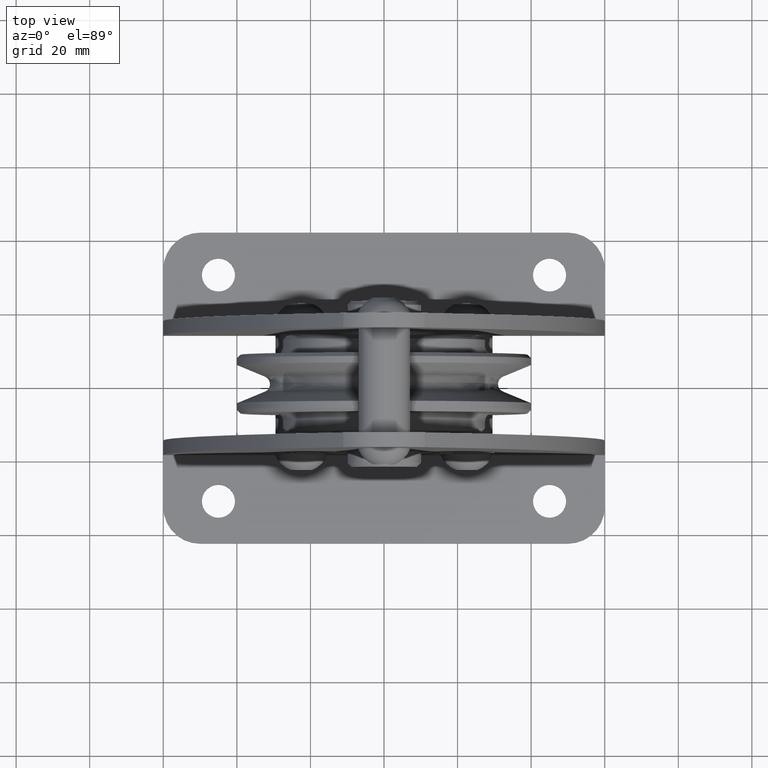
[diagram: clean part render]
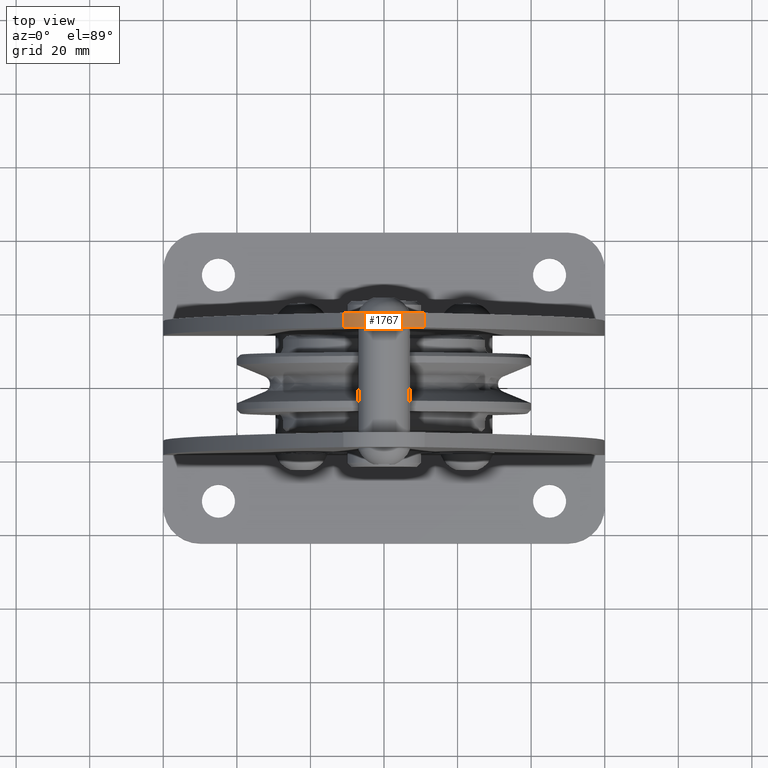
[diagram: same view with one face highlighted and labeled with its STEP entity id]
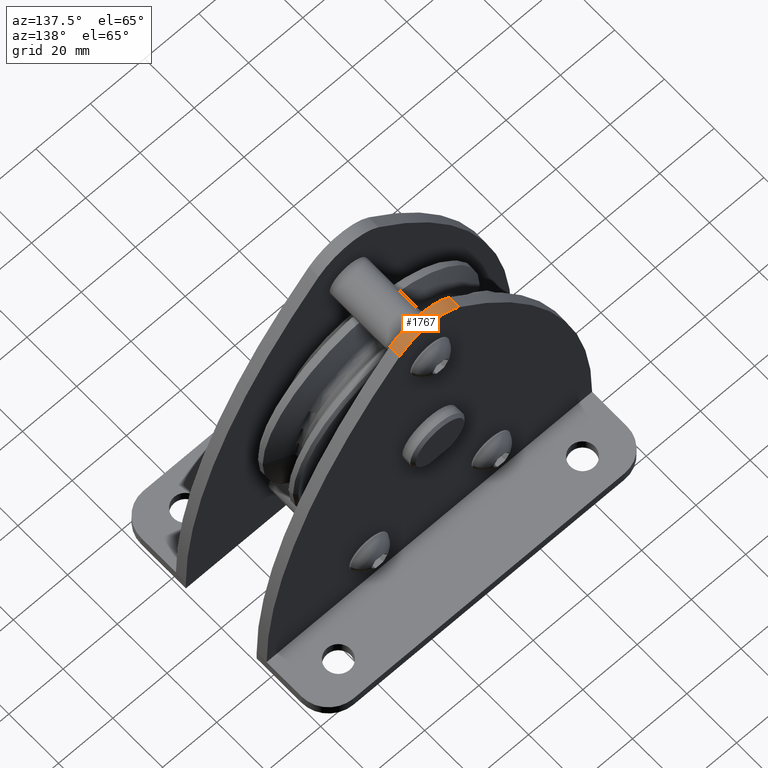
[diagram: same view with one face highlighted and labeled with its STEP entity id]
A machine part, top view. The second image highlights one B-rep face of the part: STEP entity #1767.
A second angle (auxiliary view) of the same face is appended — the face is thin or edge-on in the first view.
In plain terms, the highlighted cylindrical surface (partial cylindrical patch) has radius 15 mm, axis along (0, 1, 0).
Its self-contained STEP definition (entity closure, byte-faithful):
#1767=ADVANCED_FACE('',(#3710),#3711,.T.);
#3710=FACE_OUTER_BOUND('',#5780,.T.);
#3711=CYLINDRICAL_SURFACE('',#5781,14.9999999822);
#5780=EDGE_LOOP('',(#11395,#11396,#11397,#11398));
#5781=AXIS2_PLACEMENT_3D('',#11399,#11400,#11401);
#11395=ORIENTED_EDGE('',*,*,#14444,.T.);
#11396=ORIENTED_EDGE('',*,*,#14476,.F.);
#11397=ORIENTED_EDGE('',*,*,#14477,.T.);
#11398=ORIENTED_EDGE('',*,*,#14473,.T.);
#11399=CARTESIAN_POINT('',(-5.32907051820075E-015,14.25,54.2171862378));
#11400=DIRECTION('',(0.0,1.0,0.0));
#11401=DIRECTION('',(-0.735294118205483,0.0,0.677748153617862));
#14444=EDGE_CURVE('',#17933,#17931,#17934,.T.);
#14473=EDGE_CURVE('',#17975,#17933,#17976,.T.);
#14476=EDGE_CURVE('',#17979,#17931,#17980,.T.);
#14477=EDGE_CURVE('',#17979,#17975,#17981,.T.);
#17931=VERTEX_POINT('',#25845);
#17933=VERTEX_POINT('',#25847);
#17934=CIRCLE('',#25848,14.9999999822);
#17975=VERTEX_POINT('',#25904);
#17976=LINE('',#25905,#25906);
#17979=VERTEX_POINT('',#25909);
#17980=LINE('',#25910,#25911);
#17981=CIRCLE('',#25912,14.9999999822);
#25845=CARTESIAN_POINT('',(-11.029411760013,18.25,64.3834085300156));
#25847=CARTESIAN_POINT('',(11.029411759994,18.25,64.383408530004));
#25848=AXIS2_PLACEMENT_3D('',#28891,#28892,#28893);
#25904=CARTESIAN_POINT('',(11.029411759994,14.25,64.383408530004));
#25905=CARTESIAN_POINT('',(11.029411759994,14.25,64.383408530004));
#25906=VECTOR('',#28924,1.0);
#25909=CARTESIAN_POINT('',(-11.029411760013,14.25,64.3834085300156));
#25910=CARTESIAN_POINT('',(-11.029411760013,14.25,64.3834085300156));
#25911=VECTOR('',#28928,1.0);
#25912=AXIS2_PLACEMENT_3D('',#28929,#28930,#28931);
#28891=CARTESIAN_POINT('',(-5.32907051820075E-015,18.25,54.2171862378));
#28892=DIRECTION('',(0.0,-1.0,0.0));
#28893=DIRECTION('',(-0.735294118205483,0.0,0.677748153617862));
#28924=DIRECTION('',(0.0,1.0,0.0));
#28928=DIRECTION('',(0.0,1.0,0.0));
#28929=CARTESIAN_POINT('',(-5.32907051820075E-015,14.25,54.2171862378));
#28930=DIRECTION('',(0.0,1.0,0.0));
#28931=DIRECTION('',(-0.735294118205483,0.0,0.677748153617862));